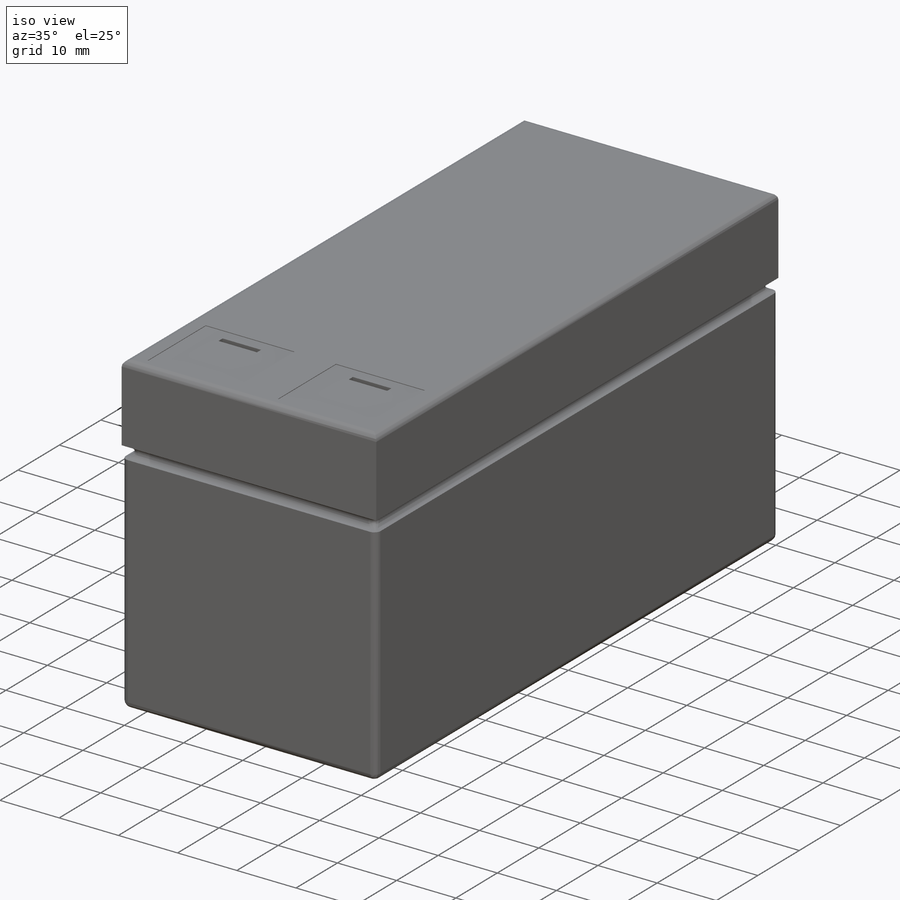
[diagram: iso view]
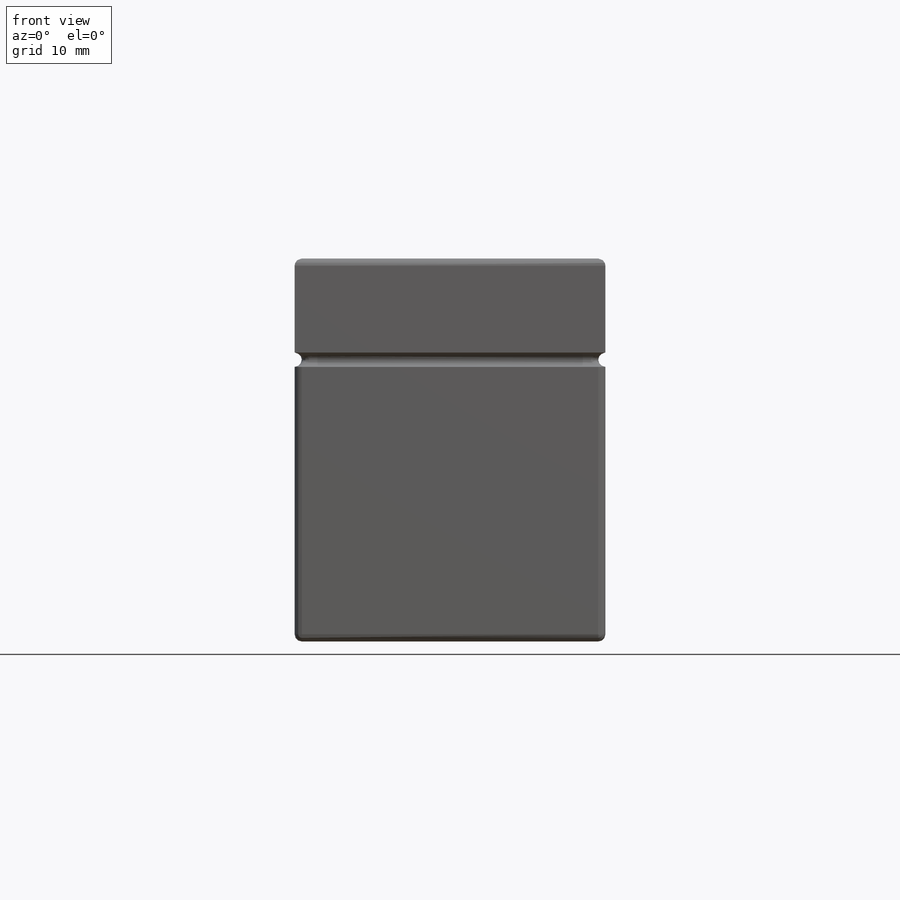
[diagram: front view]
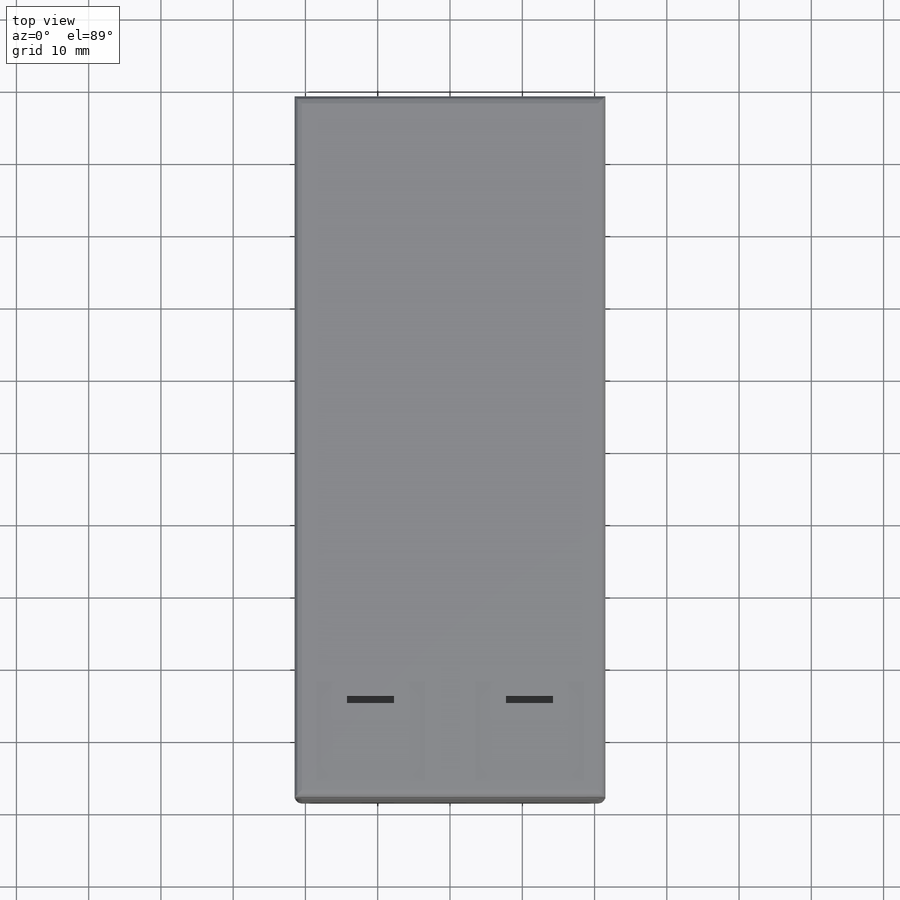
[diagram: top view]
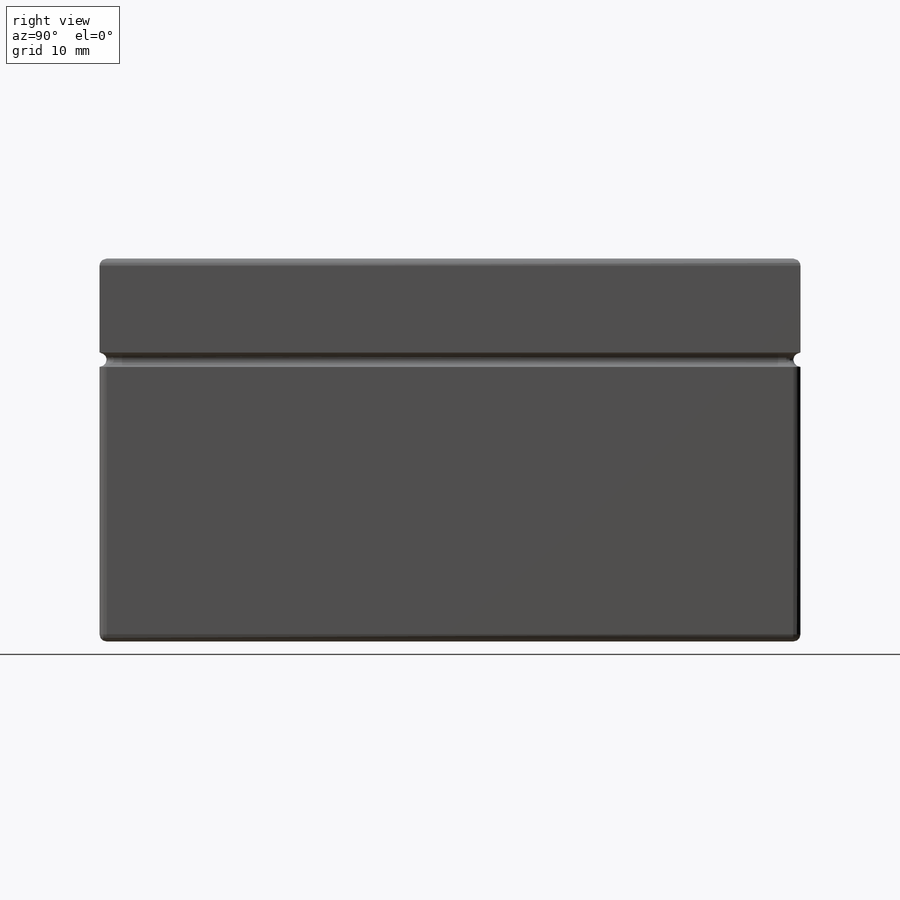
[diagram: right view]
SOLIDWORKS PART (.sldprt)
format: sldprt  version: not decoded by parser v0  size: 375,808 bytes
history: native  units: mm
features: sketch x7, cut_extrude x6, plane x3, fillet x3, material x1, extrude x1 (+9 scaffold rows collapsed)
feature tree (30):
  scaffold x9  (default folders/planes/origin — collapsed)
  material  "Материал <не указан>"
  plane  "Спереди"
  plane  "Сверху"
  plane  "Справа"
  sketch  "Эскиз1"  dims[D1=97.0mm D2=43.0mm]
  extrude  "Бобышка-Вытянуть1"  Depth=53mm
  sketch  "Эскиз3"  dims[c1.D2=0.1mm c1.D1=78.0mm c2.D2=78.0mm c2.D1=39.0mm]
  cut_extrude  "Вырез-Вытянуть1"  [1 undecoded]
  sketch  "Эскиз4"  dims[D1=39.0mm]
  cut_extrude  "Вырез-Вытянуть2"  [1 undecoded]
  sketch  "Эскиз5"  dims[D2=~6.315169mm D1=39.0mm]
  cut_extrude  "Вырез-Вытянуть3"  [1 undecoded]
  sketch  "Эскиз6"  dims[D2=~3.738023mm D1=39.0mm]
  cut_extrude  "Вырез-Вытянуть4"  [1 undecoded]
  fillet  "Скругление5"  Radius=1mm
  fillet  "Скругление6"  Radius=1mm
  sketch  "Эскиз12"  dims[c1.D1=1.0mm c1.D2=1.0mm c1.D3=2.0mm c1.D4=2.0mm c1.D5=15.0mm c1.D6=14.0mm c2.D1=3.0mm c2.D2=2.0mm c2.D3=3.0mm c2.D4=2.0mm]
  cut_extrude  "Вырез-Вытянуть8"  Depth=0.1mm
  sketch  "Эскиз13"  dims[D1=1.0mm D2=2.0mm D3=2.0mm D4=6.5mm D5=4.25mm D6=4.25mm]
  cut_extrude  "Вырез-Вытянуть9"  Depth=5mm
  fillet  "Скругление7"  Radius=1mm
decode coverage: 13 of 17 modeling features carry decoded parameters
note: ~ marks probable driven/reference dimensions
note: 4 parameter values undecoded
summary: no parameter record found for 4 features
note: suppression state not decoded; provenance and decode notes live in map.json
